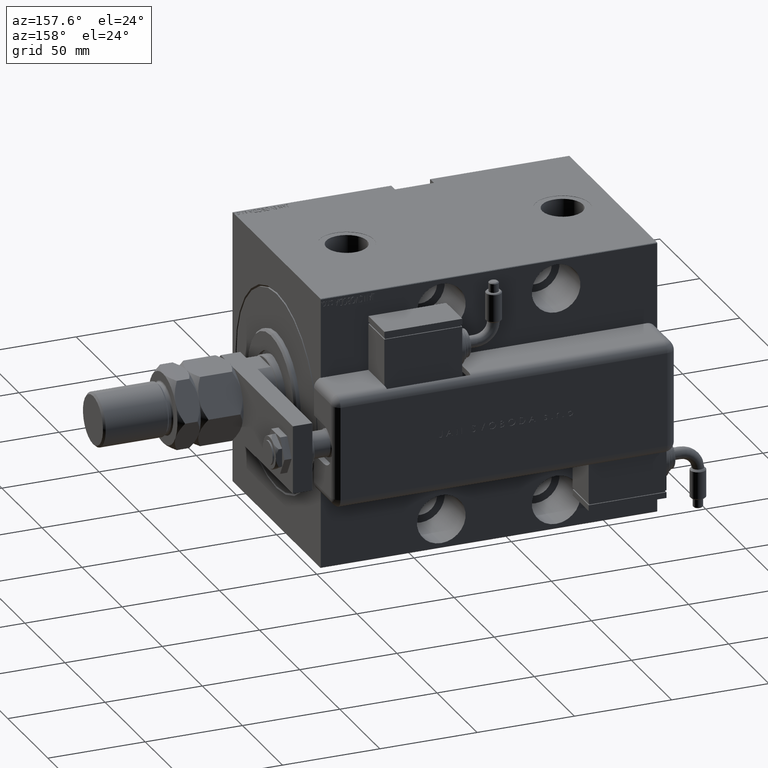
[diagram: clean part render]
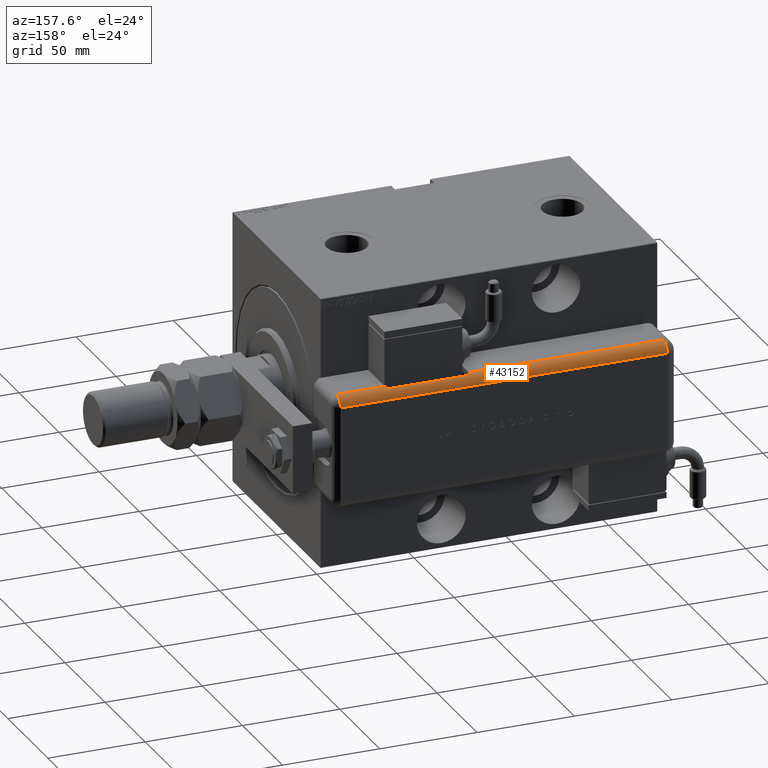
[diagram: same view with one face highlighted and labeled with its STEP entity id]
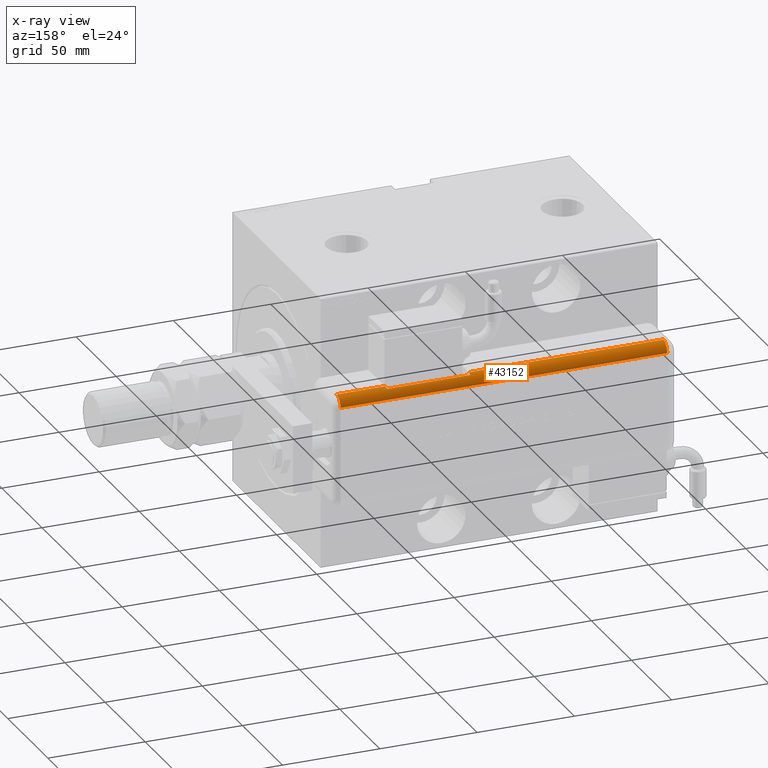
[diagram: x-ray of the same camera — body ghosted, the highlighted face saturated]
A machine part, auxiliary view. The second image highlights one B-rep face of the part: STEP entity #43152.
The next image is the same camera in x-ray: the body ghosted, the highlighted face saturated — about 0% of this face is hidden behind the body in this view.
In plain terms, the highlighted cylindrical surface (edge-blend (fillet) strip) has radius 5 mm, axis along (-1, -0, -0).
Its self-contained STEP definition (entity closure, byte-faithful):
#945 = CARTESIAN_POINT ( 'NONE',  ( -23.99999999999999645, 20.79999999999998295, 148.0000000000000000 ) ) ;
#1058 = EDGE_CURVE ( 'NONE', #34048, #3990, #56257, .T. ) ;
#2827 = EDGE_CURVE ( 'NONE', #10469, #24577, #8136, .T. ) ;
#3220 = LINE ( 'NONE', #37485, #53491 ) ;
#3291 = VERTEX_POINT ( 'NONE', #15552 ) ;
#3850 = DIRECTION ( 'NONE',  ( -1.000000000000000000, 0.000000000000000000, 0.000000000000000000 ) ) ;
#3990 = VERTEX_POINT ( 'NONE', #51625 ) ;
#5622 = ORIENTED_EDGE ( 'NONE', *, *, #14772, .F. ) ;
#5785 = DIRECTION ( 'NONE',  ( -0.000000000000000000, -0.000000000000000000, 1.000000000000000000 ) ) ;
#5909 = FACE_OUTER_BOUND ( 'NONE', #57428, .T. ) ;
#6170 = VERTEX_POINT ( 'NONE', #26450 ) ;
#8136 = CIRCLE ( 'NONE', #58293, 5.000000000000000888 ) ;
#8483 = CARTESIAN_POINT ( 'NONE',  ( -28.99999999999999645, 20.79999999999998295, 173.0000000000000000 ) ) ;
#10424 = EDGE_CURVE ( 'NONE', #24577, #34048, #30028, .T. ) ;
#10469 = VERTEX_POINT ( 'NONE', #54872 ) ;
#10921 = EDGE_CURVE ( 'NONE', #6170, #20351, #3220, .T. ) ;
#14772 = EDGE_CURVE ( 'NONE', #3291, #10469, #26387, .T. ) ;
#15185 = CARTESIAN_POINT ( 'NONE',  ( -23.99999999999999645, 20.79999999999998295, 173.0000000000000000 ) ) ;
#15304 = AXIS2_PLACEMENT_3D ( 'NONE', #15185, #38477, #42886 ) ;
#15552 = CARTESIAN_POINT ( 'NONE',  ( -28.99999999999999645, 20.79999999999998295, 173.0000000000000000 ) ) ;
#15650 = CYLINDRICAL_SURFACE ( 'NONE', #44390, 5.000000000000000888 ) ;
#16953 = LINE ( 'NONE', #8483, #35568 ) ;
#17585 = CARTESIAN_POINT ( 'NONE',  ( -28.99999999999999645, 20.79999999999998295, 173.0000000000000000 ) ) ;
#18818 = EDGE_CURVE ( 'NONE', #3990, #33922, #16953, .T. ) ;
#20351 = VERTEX_POINT ( 'NONE', #55566 ) ;
#22634 = VECTOR ( 'NONE', #27333, 1000.000000000000000 ) ;
#24191 = DIRECTION ( 'NONE',  ( 1.000000000000000000, 0.000000000000000000, 0.000000000000000000 ) ) ;
#24577 = VERTEX_POINT ( 'NONE', #30953 ) ;
#24903 = EDGE_CURVE ( 'NONE', #6170, #33922, #29760, .T. ) ;
#26387 = LINE ( 'NONE', #17585, #22634 ) ;
#26450 = CARTESIAN_POINT ( 'NONE',  ( -23.99999999999999645, 25.79999999999998295, 5.000000000000004441 ) ) ;
#27039 = CARTESIAN_POINT ( 'NONE',  ( -28.48998886412872267, 22.99999999999998934, 105.0000000000000000 ) ) ;
#27333 = DIRECTION ( 'NONE',  ( 0.000000000000000000, 0.000000000000000000, -1.000000000000000000 ) ) ;
#27728 = CARTESIAN_POINT ( 'NONE',  ( -23.99999999999999645, 20.79999999999998295, 5.000000000000004441 ) ) ;
#29479 = DIRECTION ( 'NONE',  ( -1.000000000000000000, 0.000000000000000000, 0.000000000000000000 ) ) ;
#29566 = ORIENTED_EDGE ( 'NONE', *, *, #10424, .F. ) ;
#29760 = CIRCLE ( 'NONE', #41869, 5.000000000000000888 ) ;
#30028 = LINE ( 'NONE', #55491, #38413 ) ;
#30953 = CARTESIAN_POINT ( 'NONE',  ( -28.48998886412872267, 22.99999999999998934, 148.0000000000000000 ) ) ;
#32045 = DIRECTION ( 'NONE',  ( 0.000000000000000000, 0.000000000000000000, -1.000000000000000000 ) ) ;
#33922 = VERTEX_POINT ( 'NONE', #59154 ) ;
#34048 = VERTEX_POINT ( 'NONE', #27039 ) ;
#35568 = VECTOR ( 'NONE', #32045, 1000.000000000000000 ) ;
#36538 = DIRECTION ( 'NONE',  ( -0.000000000000000000, -0.000000000000000000, 1.000000000000000000 ) ) ;
#36633 = ORIENTED_EDGE ( 'NONE', *, *, #18818, .F. ) ;
#37485 = CARTESIAN_POINT ( 'NONE',  ( -23.99999999999999645, 25.79999999999998295, 173.0000000000000000 ) ) ;
#38260 = ORIENTED_EDGE ( 'NONE', *, *, #2827, .F. ) ;
#38413 = VECTOR ( 'NONE', #49528, 1000.000000000000000 ) ;
#38477 = DIRECTION ( 'NONE',  ( -0.000000000000000000, -0.000000000000000000, 1.000000000000000000 ) ) ;
#40169 = AXIS2_PLACEMENT_3D ( 'NONE', #49792, #5785, #57983 ) ;
#40399 = CIRCLE ( 'NONE', #15304, 5.000000000000000888 ) ;
#41869 = AXIS2_PLACEMENT_3D ( 'NONE', #27728, #36538, #3850 ) ;
#42803 = CARTESIAN_POINT ( 'NONE',  ( -23.99999999999999645, 20.79999999999998295, 173.0000000000000000 ) ) ;
#42886 = DIRECTION ( 'NONE',  ( -1.000000000000000000, 0.000000000000000000, 0.000000000000000000 ) ) ;
#43152 = ADVANCED_FACE ( 'NONE', ( #5909 ), #15650, .T. ) ;
#43406 = ORIENTED_EDGE ( 'NONE', *, *, #24903, .T. ) ;
#43731 = EDGE_CURVE ( 'NONE', #20351, #3291, #40399, .T. ) ;
#44390 = AXIS2_PLACEMENT_3D ( 'NONE', #42803, #58419, #29479 ) ;
#46915 = ORIENTED_EDGE ( 'NONE', *, *, #10921, .F. ) ;
#46918 = DIRECTION ( 'NONE',  ( -0.000000000000000000, -0.000000000000000000, 1.000000000000000000 ) ) ;
#49528 = DIRECTION ( 'NONE',  ( 0.000000000000000000, 0.000000000000000000, -1.000000000000000000 ) ) ;
#49792 = CARTESIAN_POINT ( 'NONE',  ( -23.99999999999999645, 20.79999999999998295, 105.0000000000000000 ) ) ;
#50125 = ORIENTED_EDGE ( 'NONE', *, *, #43731, .F. ) ;
#51625 = CARTESIAN_POINT ( 'NONE',  ( -28.99999999999999645, 20.79999999999998295, 105.0000000000000000 ) ) ;
#53160 = ORIENTED_EDGE ( 'NONE', *, *, #1058, .F. ) ;
#53491 = VECTOR ( 'NONE', #46918, 1000.000000000000000 ) ;
#54872 = CARTESIAN_POINT ( 'NONE',  ( -28.99999999999999645, 20.79999999999998295, 148.0000000000000000 ) ) ;
#55491 = CARTESIAN_POINT ( 'NONE',  ( -28.48998886412872267, 22.99999999999998934, 173.0000000000000000 ) ) ;
#55566 = CARTESIAN_POINT ( 'NONE',  ( -23.99999999999999645, 25.79999999999998295, 173.0000000000000000 ) ) ;
#56257 = CIRCLE ( 'NONE', #40169, 5.000000000000000888 ) ;
#57428 = EDGE_LOOP ( 'NONE', ( #53160, #29566, #38260, #5622, #50125, #46915, #43406, #36633 ) ) ;
#57983 = DIRECTION ( 'NONE',  ( -1.000000000000000000, 4.163336342344336238E-15, 0.000000000000000000 ) ) ;
#58293 = AXIS2_PLACEMENT_3D ( 'NONE', #945, #58468, #24191 ) ;
#58419 = DIRECTION ( 'NONE',  ( 0.000000000000000000, 0.000000000000000000, -1.000000000000000000 ) ) ;
#58468 = DIRECTION ( 'NONE',  ( 0.000000000000000000, -0.000000000000000000, -1.000000000000000000 ) ) ;
#59154 = CARTESIAN_POINT ( 'NONE',  ( -28.99999999999999645, 20.79999999999998295, 5.000000000000004441 ) ) ;